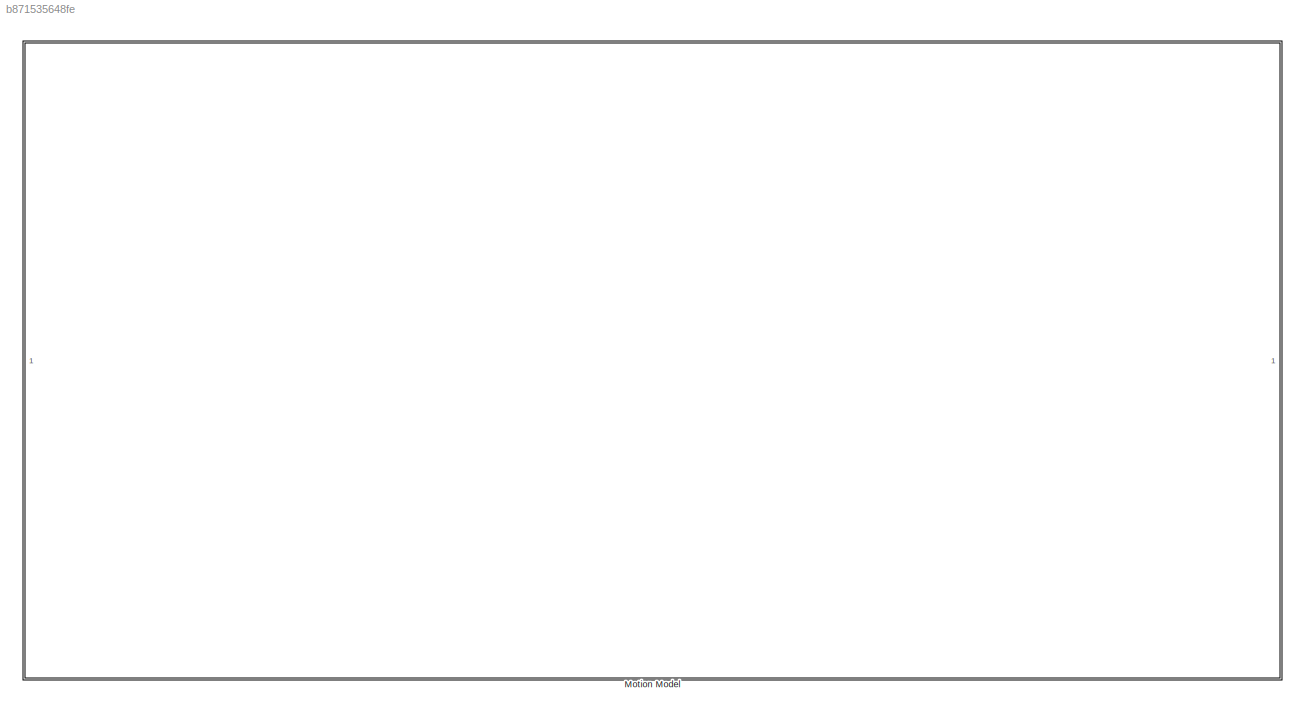
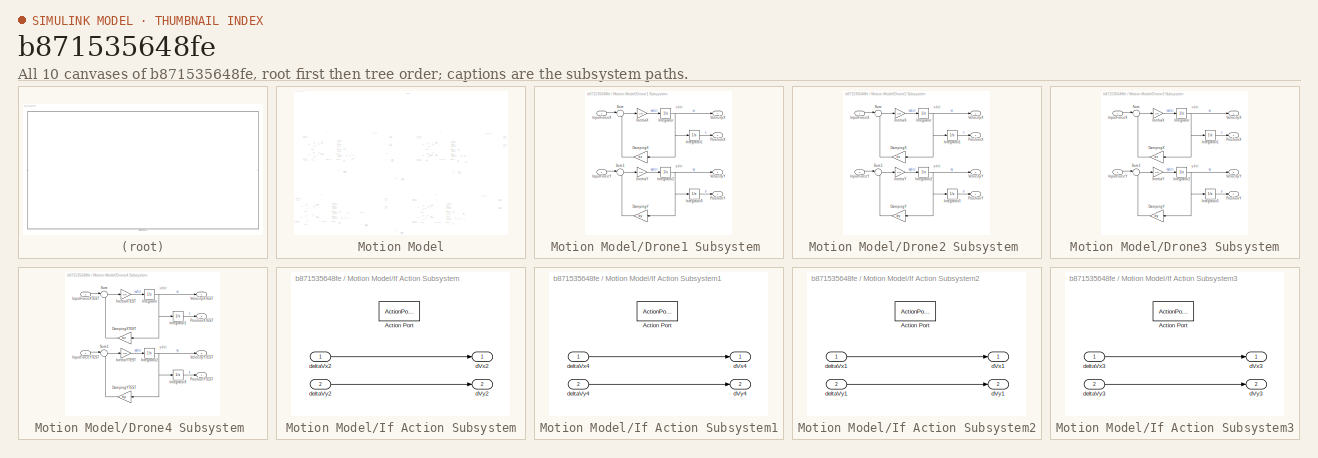
[diagram: thumbnail index - all 10 canvases of the model, root first then tree order]
MODEL slx_b871535648fe
KIND model
CONFIG AbsTol = auto
CONFIG EnableMultiTasking = off
CONFIG FixedStep = auto
CONFIG MaxStep = auto
CONFIG MinStep = auto
CONFIG RelTol = 1e-3
CONFIG SampleTimeConstraint = Unconstrained
CONFIG Solver = VariableStepAuto
CONFIG SolverName = VariableStepAuto
CONFIG StartTime = tStart 
CONFIG StopTime = tFinal
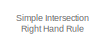
[diagram: Motion Model - part 1/11, top center region]
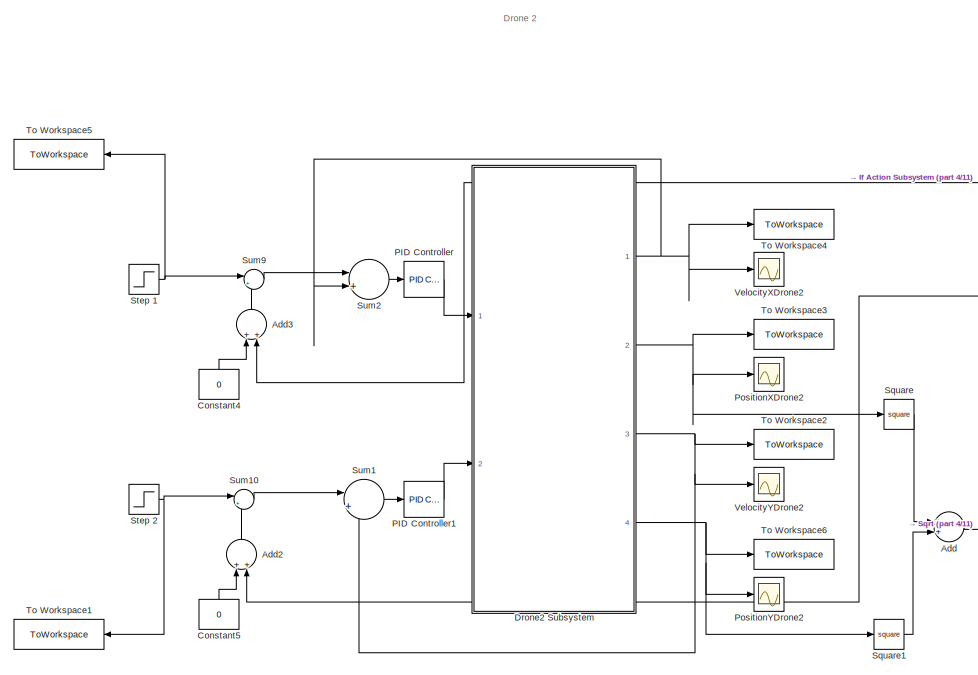
[diagram: Motion Model - part 2/11, middle left region]
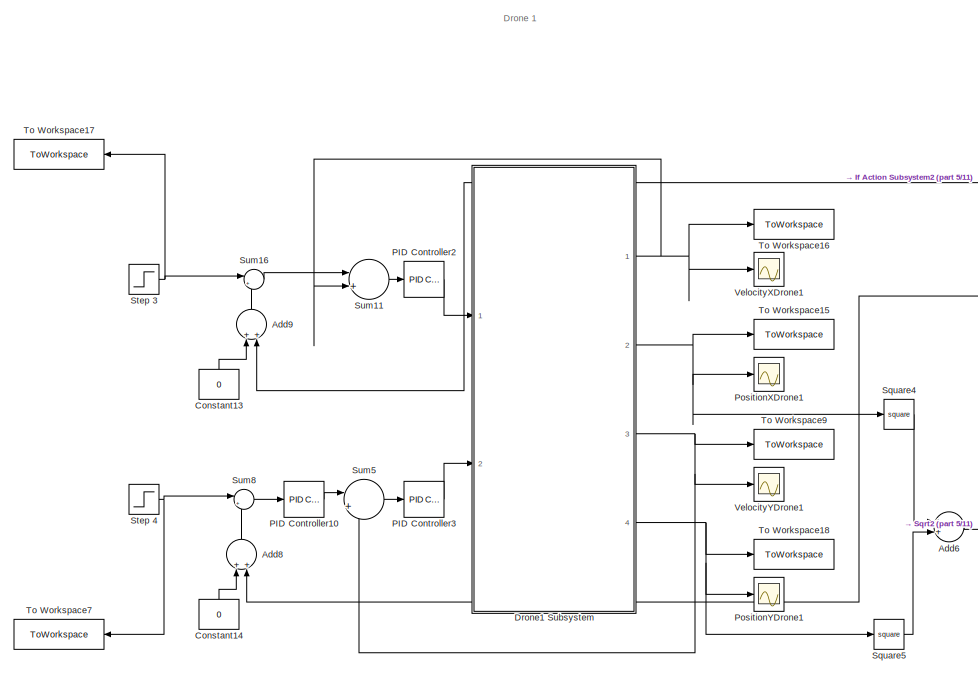
[diagram: Motion Model - part 3/11, middle right region]
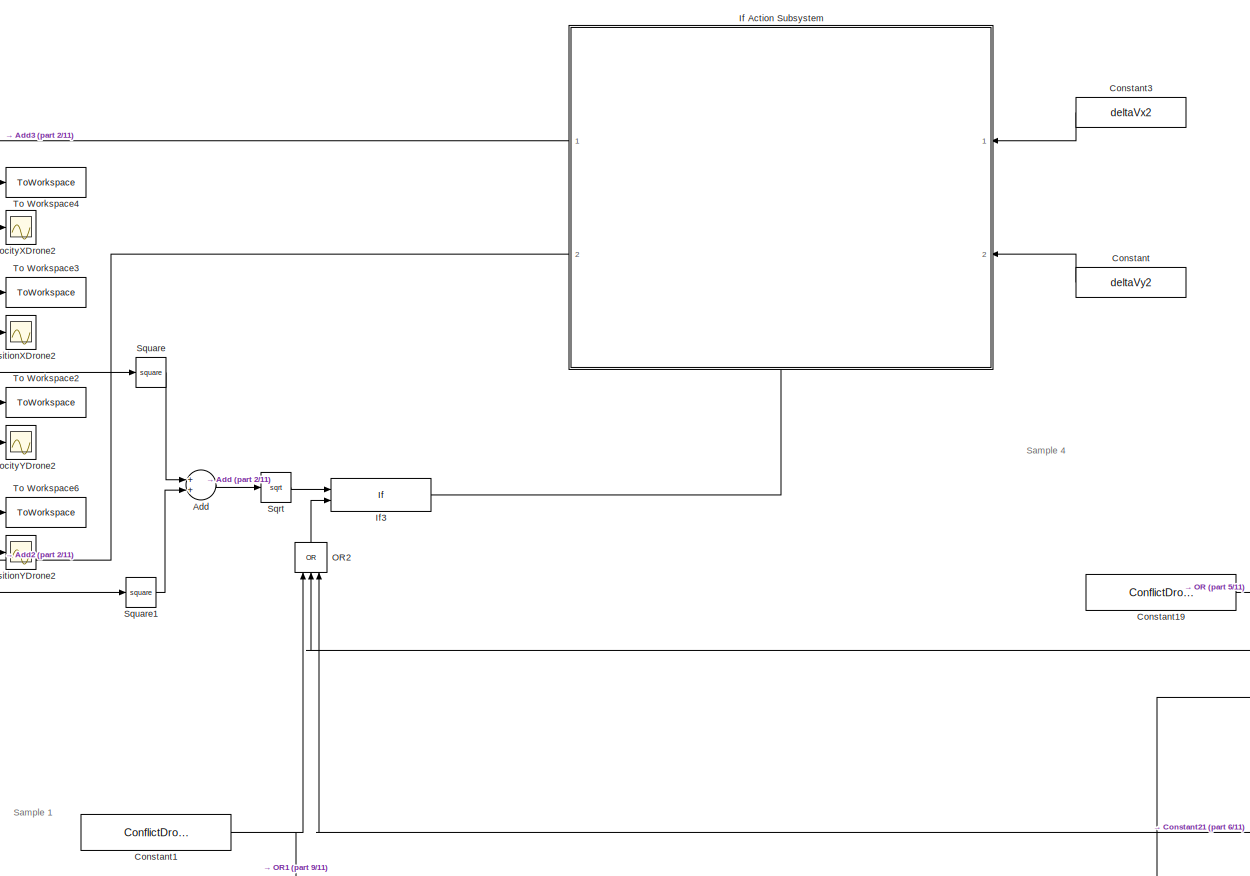
[diagram: Motion Model - part 4/11, central region]
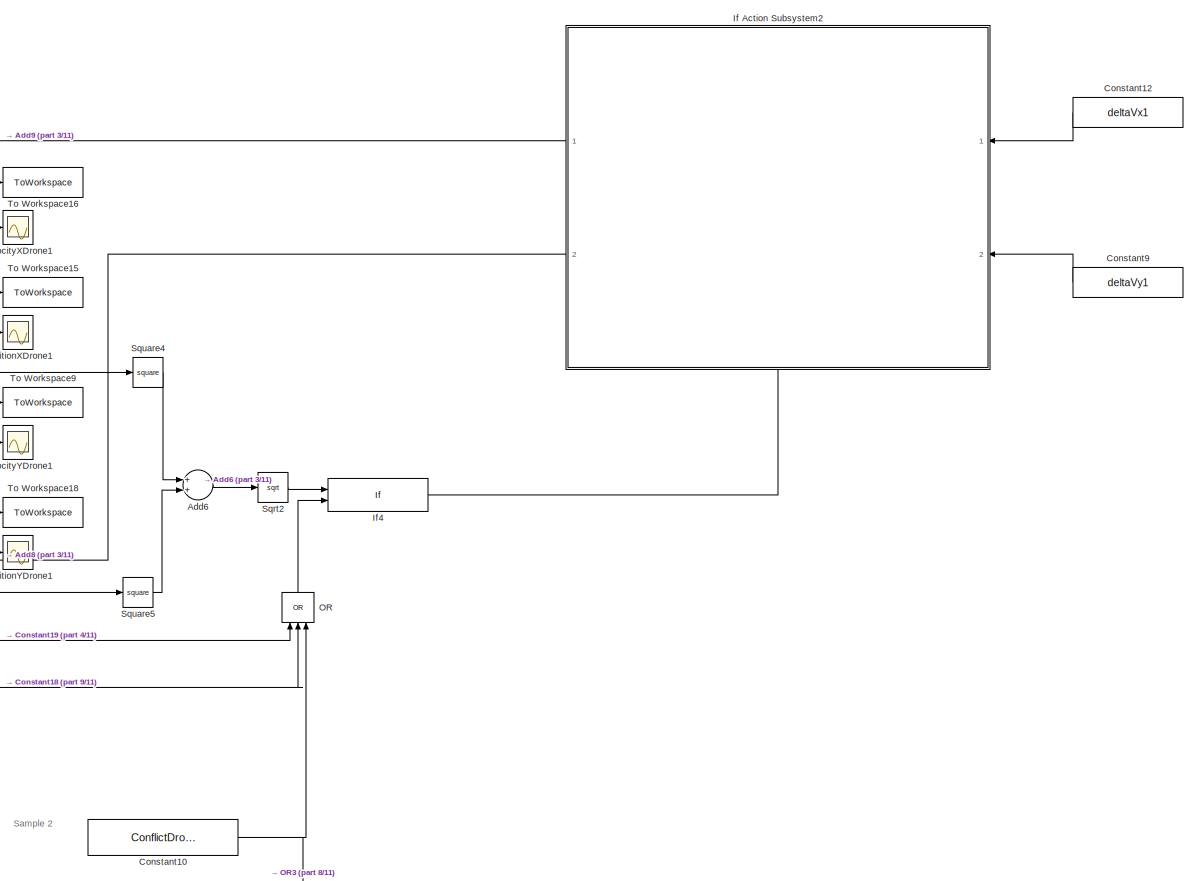
[diagram: Motion Model - part 5/11, middle right region]
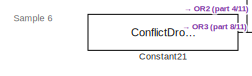
[diagram: Motion Model - part 6/11, central region]
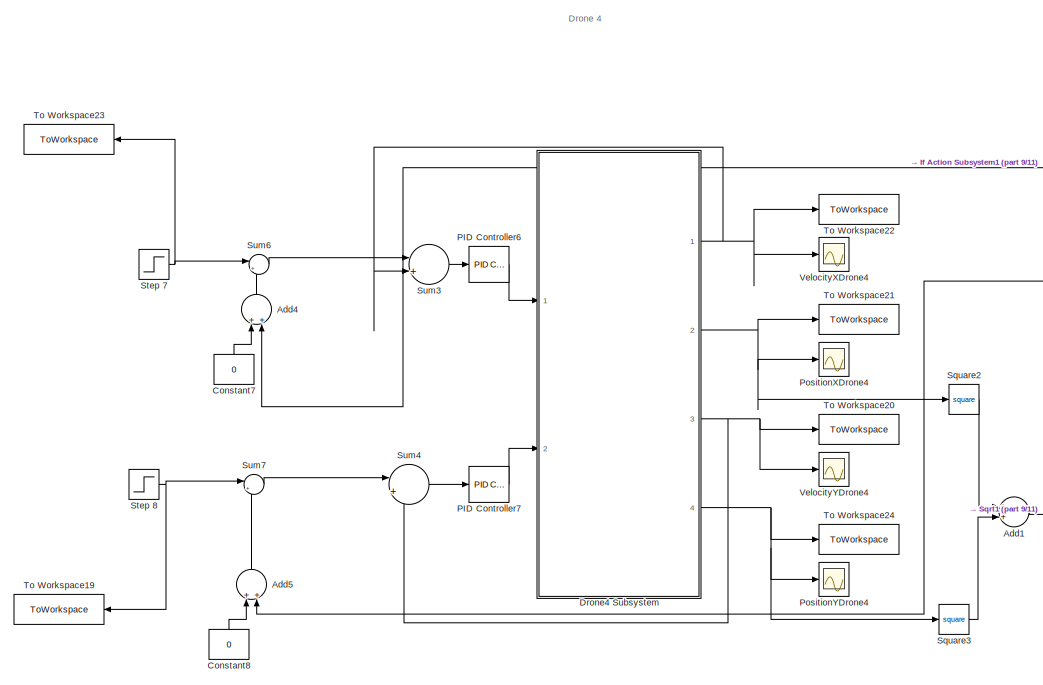
[diagram: Motion Model - part 7/11, bottom left region]
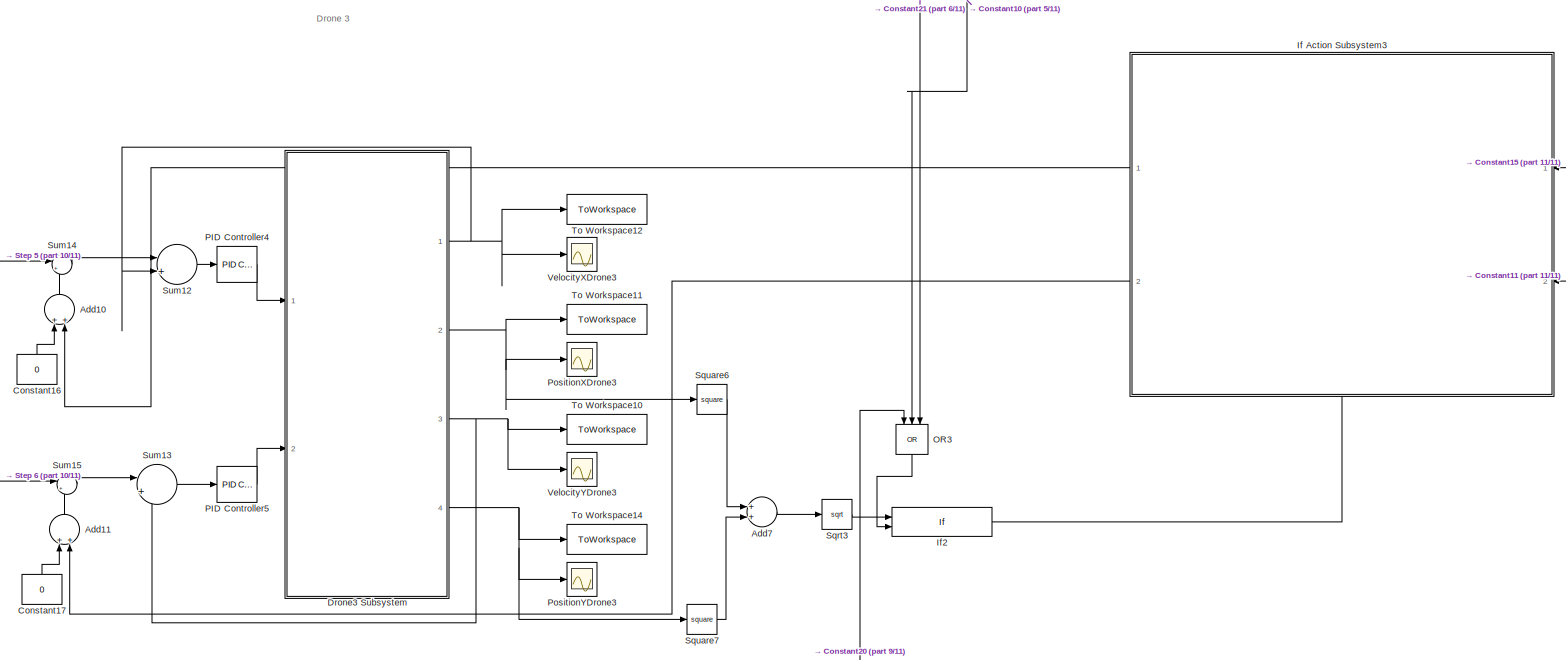
[diagram: Motion Model - part 8/11, bottom right region]
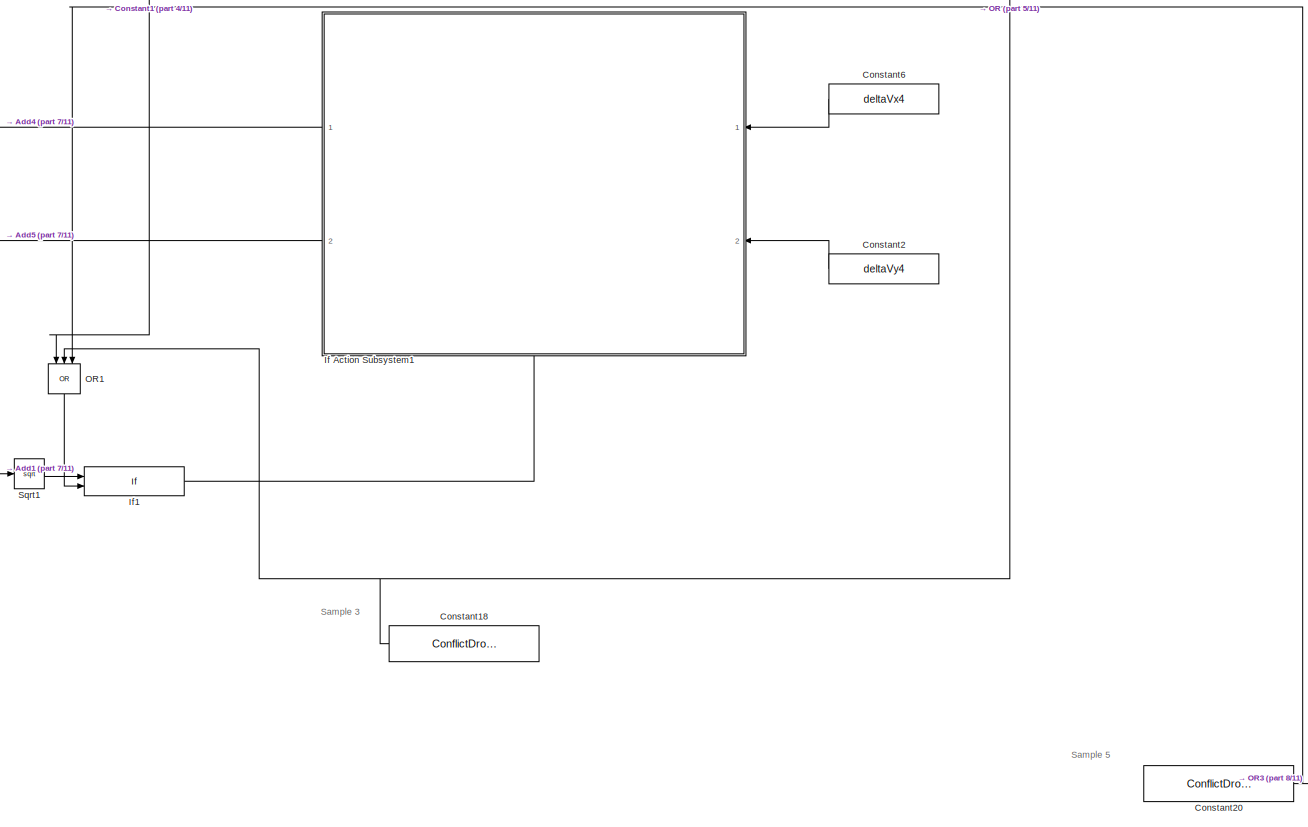
[diagram: Motion Model - part 9/11, bottom center region]
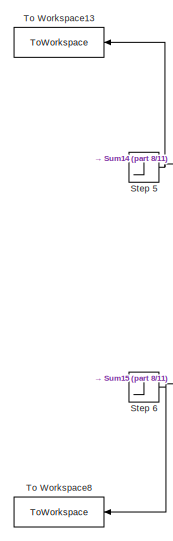
[diagram: Motion Model - part 10/11, bottom center region]
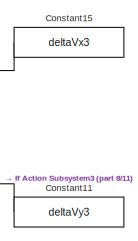
[diagram: Motion Model - part 11/11, bottom right region]
BLOCK [SubSystem] Motion Model
  Ports = []
  RequestExecContextInheritance = off
BLOCK [Sum] Motion Model/Add
  InputSameDT = off
  OutDataTypeStr = Inherit: Inherit via internal rule
  Ports = [2, 1]
  SaturateOnIntegerOverflow = off
BLOCK [Sum] Motion Model/Add1
  Commented = on
  InputSameDT = off
  OutDataTypeStr = Inherit: Inherit via internal rule
  Ports = [2, 1]
  SaturateOnIntegerOverflow = off
BLOCK [Sum] Motion Model/Add10
  InputSameDT = off
  OutDataTypeStr = Inherit: Inherit via internal rule
  Ports = [2, 1]
  SaturateOnIntegerOverflow = off
BLOCK [Sum] Motion Model/Add11
  InputSameDT = off
  OutDataTypeStr = Inherit: Inherit via internal rule
  Ports = [2, 1]
  SaturateOnIntegerOverflow = off
BLOCK [Sum] Motion Model/Add2
  InputSameDT = off
  OutDataTypeStr = Inherit: Inherit via internal rule
  Ports = [2, 1]
  SaturateOnIntegerOverflow = off
BLOCK [Sum] Motion Model/Add3
  InputSameDT = off
  OutDataTypeStr = Inherit: Inherit via internal rule
  Ports = [2, 1]
  SaturateOnIntegerOverflow = off
BLOCK [Sum] Motion Model/Add4
  Commented = on
  InputSameDT = off
  OutDataTypeStr = Inherit: Inherit via internal rule
  Ports = [2, 1]
  SaturateOnIntegerOverflow = off
BLOCK [Sum] Motion Model/Add5
  Commented = on
  InputSameDT = off
  OutDataTypeStr = Inherit: Inherit via internal rule
  Ports = [2, 1]
  SaturateOnIntegerOverflow = off
BLOCK [Sum] Motion Model/Add6
  Commented = on
  InputSameDT = off
  OutDataTypeStr = Inherit: Inherit via internal rule
  Ports = [2, 1]
  SaturateOnIntegerOverflow = off
BLOCK [Sum] Motion Model/Add7
  InputSameDT = off
  OutDataTypeStr = Inherit: Inherit via internal rule
  Ports = [2, 1]
  SaturateOnIntegerOverflow = off
BLOCK [Sum] Motion Model/Add8
  Commented = on
  InputSameDT = off
  OutDataTypeStr = Inherit: Inherit via internal rule
  Ports = [2, 1]
  SaturateOnIntegerOverflow = off
BLOCK [Sum] Motion Model/Add9
  Commented = on
  InputSameDT = off
  OutDataTypeStr = Inherit: Inherit via internal rule
  Ports = [2, 1]
  SaturateOnIntegerOverflow = off
BLOCK [Constant] Motion Model/Constant
  Value = deltaVy2
BLOCK [Constant] Motion Model/Constant1
  Commented = on
  Value = ConflictDrone2andDrone4
BLOCK [Constant] Motion Model/Constant10
  Commented = on
  Value = ConflictDrone1andDrone3
BLOCK [Constant] Motion Model/Constant11
  Value = deltaVy3
BLOCK [Constant] Motion Model/Constant12
  Commented = on
  Value = deltaVx1
BLOCK [Constant] Motion Model/Constant13
  Commented = on
  Value = 0
BLOCK [Constant] Motion Model/Constant14
  Commented = on
  Value = 0
BLOCK [Constant] Motion Model/Constant15
  Value = deltaVx3
BLOCK [Constant] Motion Model/Constant16
  Value = 0
BLOCK [Constant] Motion Model/Constant17
  Value = 0
BLOCK [Constant] Motion Model/Constant18
  Commented = on
  Value = ConflictDrone1andDrone4
BLOCK [Constant] Motion Model/Constant19
  Commented = on
  Value = ConflictDrone1andDrone2
BLOCK [Constant] Motion Model/Constant2
  Commented = on
  Value = deltaVy4
BLOCK [Constant] Motion Model/Constant20
  Commented = on
  Value = ConflictDrone3andDrone4
BLOCK [Constant] Motion Model/Constant21
  Value = ConflictDrone2andDrone3
BLOCK [Constant] Motion Model/Constant3
  Value = deltaVx2
BLOCK [Constant] Motion Model/Constant4
  Value = 0
BLOCK [Constant] Motion Model/Constant5
  Value = 0
BLOCK [Constant] Motion Model/Constant6
  Commented = on
  Value = deltaVx4
BLOCK [Constant] Motion Model/Constant7
  Commented = on
  Value = 0
BLOCK [Constant] Motion Model/Constant8
  Commented = on
  Value = 0
BLOCK [Constant] Motion Model/Constant9
  Commented = on
  Value = deltaVy1
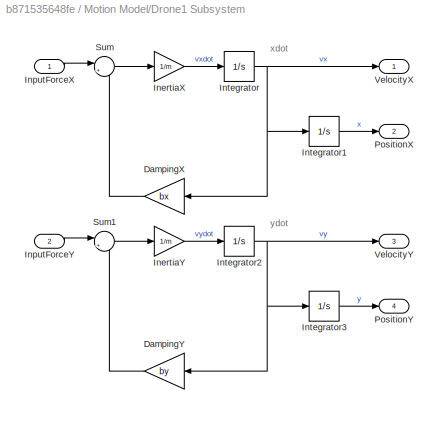
BLOCK [SubSystem] Motion Model/Drone1 Subsystem 
  Commented = on
  Ports = [2, 4]
  RequestExecContextInheritance = off
BLOCK [Gain] Motion Model/Drone1 Subsystem /DampingX 
  Gain = bx
  OutDataTypeStr = Inherit: Inherit via internal rule
  ParamDataTypeStr = Inherit: Inherit via internal rule
  SaturateOnIntegerOverflow = off
BLOCK [Gain] Motion Model/Drone1 Subsystem /DampingY
  Gain = by
  OutDataTypeStr = Inherit: Inherit via internal rule
  ParamDataTypeStr = Inherit: Inherit via internal rule
  SaturateOnIntegerOverflow = off
BLOCK [Gain] Motion Model/Drone1 Subsystem /InertiaX
  Gain = 1/m
  OutDataTypeStr = Inherit: Inherit via internal rule
  ParamDataTypeStr = Inherit: Inherit via internal rule
  SaturateOnIntegerOverflow = off
BLOCK [Gain] Motion Model/Drone1 Subsystem /InertiaY
  Gain = 1/m
  OutDataTypeStr = Inherit: Inherit via internal rule
  ParamDataTypeStr = Inherit: Inherit via internal rule
  SaturateOnIntegerOverflow = off
BLOCK [Inport] Motion Model/Drone1 Subsystem /InputForceX
  IconDisplay = Port number
BLOCK [Inport] Motion Model/Drone1 Subsystem /InputForceY
  IconDisplay = Port number
  Port = 2
BLOCK [Integrator] Motion Model/Drone1 Subsystem /Integrator
  InitialCondition = vx10
  Ports = [1, 1]
BLOCK [Integrator] Motion Model/Drone1 Subsystem /Integrator1
  InitialCondition = x10
  Ports = [1, 1]
BLOCK [Integrator] Motion Model/Drone1 Subsystem /Integrator2
  InitialCondition = vy10
  Ports = [1, 1]
BLOCK [Integrator] Motion Model/Drone1 Subsystem /Integrator3
  InitialCondition = y10
  Ports = [1, 1]
BLOCK [Outport] Motion Model/Drone1 Subsystem /PositionX
  IconDisplay = Port number
  Port = 2
BLOCK [Outport] Motion Model/Drone1 Subsystem /PositionY
  IconDisplay = Port number
  Port = 4
BLOCK [Sum] Motion Model/Drone1 Subsystem /Sum
  IconShape = round
  InputSameDT = off
  Inputs = |+-
  OutDataTypeStr = Inherit: Inherit via internal rule
  Ports = [2, 1]
  SaturateOnIntegerOverflow = off
BLOCK [Sum] Motion Model/Drone1 Subsystem /Sum1
  IconShape = round
  InputSameDT = off
  Inputs = |+-
  OutDataTypeStr = Inherit: Inherit via internal rule
  Ports = [2, 1]
  SaturateOnIntegerOverflow = off
BLOCK [Outport] Motion Model/Drone1 Subsystem /VelocityX
  IconDisplay = Port number
BLOCK [Outport] Motion Model/Drone1 Subsystem /VelocityY
  IconDisplay = Port number
  Port = 3
BLOCK [SubSystem] Motion Model/Drone2 Subsystem 
  Ports = [2, 4]
  RequestExecContextInheritance = off
BLOCK [Gain] Motion Model/Drone2 Subsystem /DampingX 
  Gain = bx
  OutDataTypeStr = Inherit: Inherit via internal rule
  ParamDataTypeStr = Inherit: Inherit via internal rule
  SaturateOnIntegerOverflow = off
BLOCK [Gain] Motion Model/Drone2 Subsystem /DampingY
  Gain = by
  OutDataTypeStr = Inherit: Inherit via internal rule
  ParamDataTypeStr = Inherit: Inherit via internal rule
  SaturateOnIntegerOverflow = off
BLOCK [Gain] Motion Model/Drone2 Subsystem /InertiaX
  Gain = 1/m
  OutDataTypeStr = Inherit: Inherit via internal rule
  ParamDataTypeStr = Inherit: Inherit via internal rule
  SaturateOnIntegerOverflow = off
BLOCK [Gain] Motion Model/Drone2 Subsystem /InertiaY
  Gain = 1/m
  OutDataTypeStr = Inherit: Inherit via internal rule
  ParamDataTypeStr = Inherit: Inherit via internal rule
  SaturateOnIntegerOverflow = off
BLOCK [Inport] Motion Model/Drone2 Subsystem /InputForceX
  IconDisplay = Port number
BLOCK [Inport] Motion Model/Drone2 Subsystem /InputForceY
  IconDisplay = Port number
  Port = 2
BLOCK [Integrator] Motion Model/Drone2 Subsystem /Integrator
  InitialCondition = vx20
  Ports = [1, 1]
BLOCK [Integrator] Motion Model/Drone2 Subsystem /Integrator1
  InitialCondition = x20
  Ports = [1, 1]
BLOCK [Integrator] Motion Model/Drone2 Subsystem /Integrator2
  InitialCondition = vy20
  Ports = [1, 1]
BLOCK [Integrator] Motion Model/Drone2 Subsystem /Integrator3
  InitialCondition = y20
  Ports = [1, 1]
BLOCK [Outport] Motion Model/Drone2 Subsystem /PositionX
  IconDisplay = Port number
  Port = 2
BLOCK [Outport] Motion Model/Drone2 Subsystem /PositionY
  IconDisplay = Port number
  Port = 4
BLOCK [Sum] Motion Model/Drone2 Subsystem /Sum
  IconShape = round
  InputSameDT = off
  Inputs = |+-
  OutDataTypeStr = Inherit: Inherit via internal rule
  Ports = [2, 1]
  SaturateOnIntegerOverflow = off
BLOCK [Sum] Motion Model/Drone2 Subsystem /Sum1
  IconShape = round
  InputSameDT = off
  Inputs = |+-
  OutDataTypeStr = Inherit: Inherit via internal rule
  Ports = [2, 1]
  SaturateOnIntegerOverflow = off
BLOCK [Outport] Motion Model/Drone2 Subsystem /VelocityX
  IconDisplay = Port number
BLOCK [Outport] Motion Model/Drone2 Subsystem /VelocityY
  IconDisplay = Port number
  Port = 3
BLOCK [SubSystem] Motion Model/Drone3 Subsystem
  Ports = [2, 4]
  RequestExecContextInheritance = off
BLOCK [Gain] Motion Model/Drone3 Subsystem/DampingX 
  Gain = bx
  OutDataTypeStr = Inherit: Inherit via internal rule
  ParamDataTypeStr = Inherit: Inherit via internal rule
  SaturateOnIntegerOverflow = off
BLOCK [Gain] Motion Model/Drone3 Subsystem/DampingY
  Gain = by
  OutDataTypeStr = Inherit: Inherit via internal rule
  ParamDataTypeStr = Inherit: Inherit via internal rule
  SaturateOnIntegerOverflow = off
BLOCK [Gain] Motion Model/Drone3 Subsystem/InertiaX
  Gain = 1/m
  OutDataTypeStr = Inherit: Inherit via internal rule
  ParamDataTypeStr = Inherit: Inherit via internal rule
  SaturateOnIntegerOverflow = off
BLOCK [Gain] Motion Model/Drone3 Subsystem/InertiaY
  Gain = 1/m
  OutDataTypeStr = Inherit: Inherit via internal rule
  ParamDataTypeStr = Inherit: Inherit via internal rule
  SaturateOnIntegerOverflow = off
BLOCK [Inport] Motion Model/Drone3 Subsystem/InputForceX
  IconDisplay = Port number
BLOCK [Inport] Motion Model/Drone3 Subsystem/InputForceY
  IconDisplay = Port number
  Port = 2
BLOCK [Integrator] Motion Model/Drone3 Subsystem/Integrator
  InitialCondition = vx30
  Ports = [1, 1]
BLOCK [Integrator] Motion Model/Drone3 Subsystem/Integrator1
  InitialCondition = x30
  Ports = [1, 1]
BLOCK [Integrator] Motion Model/Drone3 Subsystem/Integrator2
  InitialCondition = vy30
  Ports = [1, 1]
BLOCK [Integrator] Motion Model/Drone3 Subsystem/Integrator3
  InitialCondition = y30
  Ports = [1, 1]
BLOCK [Outport] Motion Model/Drone3 Subsystem/PositionX
  IconDisplay = Port number
  Port = 2
BLOCK [Outport] Motion Model/Drone3 Subsystem/PositionY
  IconDisplay = Port number
  Port = 4
BLOCK [Sum] Motion Model/Drone3 Subsystem/Sum
  IconShape = round
  InputSameDT = off
  Inputs = |+-
  OutDataTypeStr = Inherit: Inherit via internal rule
  Ports = [2, 1]
  SaturateOnIntegerOverflow = off
BLOCK [Sum] Motion Model/Drone3 Subsystem/Sum1
  IconShape = round
  InputSameDT = off
  Inputs = |+-
  OutDataTypeStr = Inherit: Inherit via internal rule
  Ports = [2, 1]
  SaturateOnIntegerOverflow = off
BLOCK [Outport] Motion Model/Drone3 Subsystem/VelocityX
  IconDisplay = Port number
BLOCK [Outport] Motion Model/Drone3 Subsystem/VelocityY
  IconDisplay = Port number
  Port = 3
BLOCK [SubSystem] Motion Model/Drone4 Subsystem 
  Commented = on
  Ports = [2, 4]
  RequestExecContextInheritance = off
BLOCK [Gain] Motion Model/Drone4 Subsystem /DampingXTEST 
  Gain = bx
  OutDataTypeStr = Inherit: Inherit via internal rule
  ParamDataTypeStr = Inherit: Inherit via internal rule
  SaturateOnIntegerOverflow = off
BLOCK [Gain] Motion Model/Drone4 Subsystem /DampingYTEST
  Gain = by
  OutDataTypeStr = Inherit: Inherit via internal rule
  ParamDataTypeStr = Inherit: Inherit via internal rule
  SaturateOnIntegerOverflow = off
BLOCK [Gain] Motion Model/Drone4 Subsystem /InertiaXTEST
  Gain = 1/m
  OutDataTypeStr = Inherit: Inherit via internal rule
  ParamDataTypeStr = Inherit: Inherit via internal rule
  SaturateOnIntegerOverflow = off
BLOCK [Gain] Motion Model/Drone4 Subsystem /InertiaYTEST
  Gain = 1/m
  OutDataTypeStr = Inherit: Inherit via internal rule
  ParamDataTypeStr = Inherit: Inherit via internal rule
  SaturateOnIntegerOverflow = off
BLOCK [Inport] Motion Model/Drone4 Subsystem /InputForceXTEST
  IconDisplay = Port number
BLOCK [Inport] Motion Model/Drone4 Subsystem /InputForceYTEST
  IconDisplay = Port number
  Port = 2
BLOCK [Integrator] Motion Model/Drone4 Subsystem /Integrator
  InitialCondition = vx40
  Ports = [1, 1]
BLOCK [Integrator] Motion Model/Drone4 Subsystem /Integrator1
  InitialCondition = x40
  Ports = [1, 1]
BLOCK [Integrator] Motion Model/Drone4 Subsystem /Integrator2
  InitialCondition = vy40
  Ports = [1, 1]
BLOCK [Integrator] Motion Model/Drone4 Subsystem /Integrator3
  InitialCondition = y40
  Ports = [1, 1]
BLOCK [Outport] Motion Model/Drone4 Subsystem /PositionXTEST
  IconDisplay = Port number
  Port = 2
BLOCK [Outport] Motion Model/Drone4 Subsystem /PositionYTEST
  IconDisplay = Port number
  Port = 4
BLOCK [Sum] Motion Model/Drone4 Subsystem /Sum
  IconShape = round
  InputSameDT = off
  Inputs = |+-
  OutDataTypeStr = Inherit: Inherit via internal rule
  Ports = [2, 1]
  SaturateOnIntegerOverflow = off
BLOCK [Sum] Motion Model/Drone4 Subsystem /Sum1
  IconShape = round
  InputSameDT = off
  Inputs = |+-
  OutDataTypeStr = Inherit: Inherit via internal rule
  Ports = [2, 1]
  SaturateOnIntegerOverflow = off
BLOCK [Outport] Motion Model/Drone4 Subsystem /VelocityXTEST
  IconDisplay = Port number
BLOCK [Outport] Motion Model/Drone4 Subsystem /VelocityYTEST
  IconDisplay = Port number
  Port = 3
BLOCK [SubSystem] Motion Model/If Action Subsystem
  Ports = [2, 2, 0, 0, 0, 0, 0, 1]
  RequestExecContextInheritance = off
  TreatAsAtomicUnit = on
BLOCK [ActionPort] Motion Model/If Action Subsystem/Action Port
  ActionType = then
BLOCK [Outport] Motion Model/If Action Subsystem/dVx2
  IconDisplay = Port number
BLOCK [Outport] Motion Model/If Action Subsystem/dVy2
  IconDisplay = Port number
  Port = 2
BLOCK [Inport] Motion Model/If Action Subsystem/deltaVx2
  IconDisplay = Port number
BLOCK [Inport] Motion Model/If Action Subsystem/deltaVy2
  IconDisplay = Port number
  Port = 2
BLOCK [SubSystem] Motion Model/If Action Subsystem1
  Commented = on
  Ports = [2, 2, 0, 0, 0, 0, 0, 1]
  RequestExecContextInheritance = off
  TreatAsAtomicUnit = on
BLOCK [ActionPort] Motion Model/If Action Subsystem1/Action Port
  ActionType = then
BLOCK [Outport] Motion Model/If Action Subsystem1/dVx4
  IconDisplay = Port number
BLOCK [Outport] Motion Model/If Action Subsystem1/dVy4
  IconDisplay = Port number
  Port = 2
BLOCK [Inport] Motion Model/If Action Subsystem1/deltaVx4
  IconDisplay = Port number
BLOCK [Inport] Motion Model/If Action Subsystem1/deltaVy4
  IconDisplay = Port number
  Port = 2
BLOCK [SubSystem] Motion Model/If Action Subsystem2
  Commented = on
  Ports = [2, 2, 0, 0, 0, 0, 0, 1]
  RequestExecContextInheritance = off
  TreatAsAtomicUnit = on
BLOCK [ActionPort] Motion Model/If Action Subsystem2/Action Port
  ActionType = then
BLOCK [Outport] Motion Model/If Action Subsystem2/dVx1
  IconDisplay = Port number
BLOCK [Outport] Motion Model/If Action Subsystem2/dVy1
  IconDisplay = Port number
  Port = 2
BLOCK [Inport] Motion Model/If Action Subsystem2/deltaVx1
  IconDisplay = Port number
BLOCK [Inport] Motion Model/If Action Subsystem2/deltaVy1
  IconDisplay = Port number
  Port = 2
BLOCK [SubSystem] Motion Model/If Action Subsystem3
  Ports = [2, 2, 0, 0, 0, 0, 0, 1]
  RequestExecContextInheritance = off
  TreatAsAtomicUnit = on
BLOCK [ActionPort] Motion Model/If Action Subsystem3/Action Port
  ActionType = then
BLOCK [Outport] Motion Model/If Action Subsystem3/dVx3
  IconDisplay = Port number
BLOCK [Outport] Motion Model/If Action Subsystem3/dVy3
  IconDisplay = Port number
  Port = 2
BLOCK [Inport] Motion Model/If Action Subsystem3/deltaVx3
  IconDisplay = Port number
BLOCK [Inport] Motion Model/If Action Subsystem3/deltaVy3
  IconDisplay = Port number
  Port = 2
BLOCK [If] Motion Model/If1
  Commented = on
  IfExpression = (u1 <= R)&(u2 == 1)
  NumInputs = 2
  Ports = [2, 1]
  ShowElse = off
BLOCK [If] Motion Model/If2
  IfExpression = (u1 <= R)&(u2 == 1)
  NumInputs = 2
  Ports = [2, 1]
  ShowElse = off
BLOCK [If] Motion Model/If3
  IfExpression = (u1 <= R)&(u2 == 1)
  NumInputs = 2
  Ports = [2, 1]
  ShowElse = off
BLOCK [If] Motion Model/If4
  Commented = on
  IfExpression = (u1 <= R)&(u2 == 1)
  NumInputs = 2
  Ports = [2, 1]
  ShowElse = off
BLOCK [Logic] Motion Model/OR
  AllPortsSameDT = off
  Commented = on
  IconShape = distinctive
  Inputs = 3
  Operator = OR
  OutDataTypeStr = 'double'
  Ports = [3, 1]
BLOCK [Logic] Motion Model/OR1
  AllPortsSameDT = off
  Commented = on
  IconShape = distinctive
  Inputs = 3
  Operator = OR
  OutDataTypeStr = 'double'
  Ports = [3, 1]
BLOCK [Logic] Motion Model/OR2
  AllPortsSameDT = off
  IconShape = distinctive
  Inputs = 3
  Operator = OR
  OutDataTypeStr = 'double'
  Ports = [3, 1]
BLOCK [Logic] Motion Model/OR3
  AllPortsSameDT = off
  IconShape = distinctive
  Inputs = 3
  Operator = OR
  OutDataTypeStr = 'double'
  Ports = [3, 1]
BLOCK [Reference] Motion Model/PID Controller  REF=simulink/Continuous/PID Controller
  Ports = [1, 1]
  SourceBlock = simulink/Continuous/PID Controller
  SourceProductBaseCode = SL
  SourceProductName = Simulink
  SourceType = PID 1dof
BLOCK [Reference] Motion Model/PID Controller1  REF=simulink/Continuous/PID Controller
  Ports = [1, 1]
  SourceBlock = simulink/Continuous/PID Controller
  SourceProductBaseCode = SL
  SourceProductName = Simulink
  SourceType = PID 1dof
BLOCK [Reference] Motion Model/PID Controller10  REF=simulink/Continuous/PID Controller
  Commented = on
  Ports = [1, 1]
  SourceBlock = simulink/Continuous/PID Controller
  SourceProductBaseCode = SL
  SourceProductName = Simulink
  SourceType = PID 1dof
BLOCK [Reference] Motion Model/PID Controller2  REF=simulink/Continuous/PID Controller
  Commented = on
  Ports = [1, 1]
  SourceBlock = simulink/Continuous/PID Controller
  SourceProductBaseCode = SL
  SourceProductName = Simulink
  SourceType = PID 1dof
BLOCK [Reference] Motion Model/PID Controller3  REF=simulink/Continuous/PID Controller
  Commented = on
  Ports = [1, 1]
  SourceBlock = simulink/Continuous/PID Controller
  SourceProductBaseCode = SL
  SourceProductName = Simulink
  SourceType = PID 1dof
BLOCK [Reference] Motion Model/PID Controller4  REF=simulink/Continuous/PID Controller
  Ports = [1, 1]
  SourceBlock = simulink/Continuous/PID Controller
  SourceProductBaseCode = SL
  SourceProductName = Simulink
  SourceType = PID 1dof
BLOCK [Reference] Motion Model/PID Controller5  REF=simulink/Continuous/PID Controller
  Ports = [1, 1]
  SourceBlock = simulink/Continuous/PID Controller
  SourceProductBaseCode = SL
  SourceProductName = Simulink
  SourceType = PID 1dof
BLOCK [Reference] Motion Model/PID Controller6  REF=simulink/Continuous/PID Controller
  Commented = on
  Ports = [1, 1]
  SourceBlock = simulink/Continuous/PID Controller
  SourceProductBaseCode = SL
  SourceProductName = Simulink
  SourceType = PID 1dof
BLOCK [Reference] Motion Model/PID Controller7  REF=simulink/Continuous/PID Controller
  Commented = on
  Ports = [1, 1]
  SourceBlock = simulink/Continuous/PID Controller
  SourceProductBaseCode = SL
  SourceProductName = Simulink
  SourceType = PID 1dof
BLOCK [Scope] Motion Model/PositionXDrone1
  Commented = on
  Floating = off
  NumInputPorts = 1
  Ports = [1]
  ScopeSpecificationString = Simulink.scopes.TimeScopeBlockCfg('CurrentConfiguration', extmgr.ConfigurationSet(extmgr.Configuration('Core','General UI',true),extmgr.Configuration('Core','Source UI',true),extmgr.Configuration('Sources','WiredSimulink',true,'DataLoggingVariableName','ScopeData1'),extmgr.Configuration('Visuals','Time Domain',true,'SerializedDisplays',{struct('MinYLimReal','-13.93778','MaxYLimReal','12.65975','YL...<+1455ch>
BLOCK [Scope] Motion Model/PositionXDrone2
  Floating = off
  NumInputPorts = 1
  Ports = [1]
  ScopeSpecificationString = Simulink.scopes.TimeScopeBlockCfg('CurrentConfiguration', extmgr.ConfigurationSet(extmgr.Configuration('Core','General UI',true),extmgr.Configuration('Core','Source UI',true),extmgr.Configuration('Sources','WiredSimulink',true,'DataLoggingVariableName','ScopeData2'),extmgr.Configuration('Visuals','Time Domain',true,'SerializedDisplays',{struct('MinYLimReal','-13.93778','MaxYLimReal','12.65975','YL...<+1455ch>
BLOCK [Scope] Motion Model/PositionXDrone3
  Floating = off
  NumInputPorts = 1
  Ports = [1]
  ScopeSpecificationString = Simulink.scopes.TimeScopeBlockCfg('CurrentConfiguration', extmgr.ConfigurationSet(extmgr.Configuration('Core','General UI',true),extmgr.Configuration('Core','Source UI',true),extmgr.Configuration('Sources','WiredSimulink',true,'DataLoggingVariableName','ScopeData2'),extmgr.Configuration('Visuals','Time Domain',true,'SerializedDisplays',{struct('MinYLimReal','-75.81743','MaxYLimReal','8.42416','YLa...<+1453ch>
BLOCK [Scope] Motion Model/PositionXDrone4
  Commented = on
  Floating = off
  NumInputPorts = 1
  Ports = [1]
  ScopeSpecificationString = Simulink.scopes.TimeScopeBlockCfg('CurrentConfiguration', extmgr.ConfigurationSet(extmgr.Configuration('Core','General UI',true),extmgr.Configuration('Core','Source UI',true),extmgr.Configuration('Sources','WiredSimulink',true,'DataLoggingVariableName','ScopeData4'),extmgr.Configuration('Visuals','Time Domain',true,'SerializedDisplays',{struct('MinYLimReal','-75.81743','MaxYLimReal','8.42416','YLa...<+1453ch>
BLOCK [Scope] Motion Model/PositionYDrone1
  Commented = on
  Floating = off
  NumInputPorts = 1
  Ports = [1]
  ScopeSpecificationString = Simulink.scopes.TimeScopeBlockCfg('CurrentConfiguration', extmgr.ConfigurationSet(extmgr.Configuration('Core','General UI',true),extmgr.Configuration('Core','Source UI',true),extmgr.Configuration('Sources','WiredSimulink',true,'DataLoggingVariableName','ScopeData3'),extmgr.Configuration('Visuals','Time Domain',true,'SerializedDisplays',{struct('MinYLimReal','-12488.44039','MaxYLimReal','112495.937...<+1759ch>
BLOCK [Scope] Motion Model/PositionYDrone2
  Floating = off
  NumInputPorts = 1
  Ports = [1]
  ScopeSpecificationString = Simulink.scopes.TimeScopeBlockCfg('CurrentConfiguration', extmgr.ConfigurationSet(extmgr.Configuration('Core','General UI',true),extmgr.Configuration('Core','Source UI',true),extmgr.Configuration('Sources','WiredSimulink',true,'DataLoggingVariableName','ScopeData10'),extmgr.Configuration('Visuals','Time Domain',true,'SerializedDisplays',{struct('MinYLimReal','-12488.44039','MaxYLimReal','112495.93...<+1760ch>
BLOCK [Scope] Motion Model/PositionYDrone3
  Floating = off
  NumInputPorts = 1
  Ports = [1]
  ScopeSpecificationString = Simulink.scopes.TimeScopeBlockCfg('CurrentConfiguration', extmgr.ConfigurationSet(extmgr.Configuration('Core','General UI',true),extmgr.Configuration('Core','Source UI',true),extmgr.Configuration('Sources','WiredSimulink',true,'DataLoggingVariableName','ScopeData4'),extmgr.Configuration('Visuals','Time Domain',true,'SerializedDisplays',{struct('MinYLimReal','-12488.44039','MaxYLimReal','112495.937...<+1759ch>
BLOCK [Scope] Motion Model/PositionYDrone4
  Commented = on
  Floating = off
  NumInputPorts = 1
  Ports = [1]
  ScopeSpecificationString = Simulink.scopes.TimeScopeBlockCfg('CurrentConfiguration', extmgr.ConfigurationSet(extmgr.Configuration('Core','General UI',true),extmgr.Configuration('Core','Source UI',true),extmgr.Configuration('Sources','WiredSimulink',true,'DataLoggingVariableName','ScopeData12'),extmgr.Configuration('Visuals','Time Domain',true,'SerializedDisplays',{struct('MinYLimReal','-12488.44039','MaxYLimReal','112495.93...<+1760ch>
BLOCK [Sqrt] Motion Model/Sqrt
BLOCK [Sqrt] Motion Model/Sqrt1
  Commented = on
BLOCK [Sqrt] Motion Model/Sqrt2
  Commented = on
BLOCK [Sqrt] Motion Model/Sqrt3
BLOCK [Math] Motion Model/Square
  Operator = square
  Ports = [1, 1]
BLOCK [Math] Motion Model/Square1
  Operator = square
  Ports = [1, 1]
BLOCK [Math] Motion Model/Square2
  Commented = on
  Operator = square
  Ports = [1, 1]
BLOCK [Math] Motion Model/Square3
  Commented = on
  Operator = square
  Ports = [1, 1]
BLOCK [Math] Motion Model/Square4
  Commented = on
  Operator = square
  Ports = [1, 1]
BLOCK [Math] Motion Model/Square5
  Commented = on
  Operator = square
  Ports = [1, 1]
BLOCK [Math] Motion Model/Square6
  Operator = square
  Ports = [1, 1]
BLOCK [Math] Motion Model/Square7
  Operator = square
  Ports = [1, 1]
BLOCK [Step] Motion Model/Step 1
  After = VelocityStarX2
  SampleTime = 0
  Time = 0
BLOCK [Step] Motion Model/Step 2
  After = VelocityStarY2
  SampleTime = 0
  Time = 0
BLOCK [Step] Motion Model/Step 3
  After = VelocityStarX1
  Commented = on
  SampleTime = 0
  Time = 0
BLOCK [Step] Motion Model/Step 4
  After = VelocityStarY1
  Commented = on
  SampleTime = 0
  Time = 0
BLOCK [Step] Motion Model/Step 5
  After = VelocityStarX3
  SampleTime = 0
  Time = 0
BLOCK [Step] Motion Model/Step 6
  After = VelocityStarY3
  SampleTime = 0
  Time = 0
BLOCK [Step] Motion Model/Step 7
  After = VelocityStarX4
  Commented = on
  SampleTime = 0
  Time = 0
BLOCK [Step] Motion Model/Step 8
  After = VelocityStarY4
  Commented = on
  SampleTime = 0
  Time = 0
BLOCK [Sum] Motion Model/Sum1
  IconShape = round
  InputSameDT = off
  Inputs = |+-
  OutDataTypeStr = Inherit: Inherit via internal rule
  Ports = [2, 1]
  SaturateOnIntegerOverflow = off
BLOCK [Sum] Motion Model/Sum10
  IconShape = round
  InputSameDT = off
  Inputs = |+-
  OutDataTypeStr = Inherit: Inherit via internal rule
  Ports = [2, 1]
  SaturateOnIntegerOverflow = off
BLOCK [Sum] Motion Model/Sum11
  Commented = on
  IconShape = round
  InputSameDT = off
  Inputs = |+-
  OutDataTypeStr = Inherit: Inherit via internal rule
  Ports = [2, 1]
  SaturateOnIntegerOverflow = off
BLOCK [Sum] Motion Model/Sum12
  IconShape = round
  InputSameDT = off
  Inputs = |+-
  OutDataTypeStr = Inherit: Inherit via internal rule
  Ports = [2, 1]
  SaturateOnIntegerOverflow = off
BLOCK [Sum] Motion Model/Sum13
  IconShape = round
  InputSameDT = off
  Inputs = |+-
  OutDataTypeStr = Inherit: Inherit via internal rule
  Ports = [2, 1]
  SaturateOnIntegerOverflow = off
BLOCK [Sum] Motion Model/Sum14
  IconShape = round
  InputSameDT = off
  Inputs = |+-
  OutDataTypeStr = Inherit: Inherit via internal rule
  Ports = [2, 1]
  SaturateOnIntegerOverflow = off
BLOCK [Sum] Motion Model/Sum15
  IconShape = round
  InputSameDT = off
  Inputs = |+-
  OutDataTypeStr = Inherit: Inherit via internal rule
  Ports = [2, 1]
  SaturateOnIntegerOverflow = off
BLOCK [Sum] Motion Model/Sum16
  Commented = on
  IconShape = round
  InputSameDT = off
  Inputs = |+-
  OutDataTypeStr = Inherit: Inherit via internal rule
  Ports = [2, 1]
  SaturateOnIntegerOverflow = off
BLOCK [Sum] Motion Model/Sum2
  IconShape = round
  InputSameDT = off
  Inputs = |+-
  OutDataTypeStr = Inherit: Inherit via internal rule
  Ports = [2, 1]
  SaturateOnIntegerOverflow = off
BLOCK [Sum] Motion Model/Sum3
  Commented = on
  IconShape = round
  InputSameDT = off
  Inputs = |+-
  OutDataTypeStr = Inherit: Inherit via internal rule
  Ports = [2, 1]
  SaturateOnIntegerOverflow = off
BLOCK [Sum] Motion Model/Sum4
  Commented = on
  IconShape = round
  InputSameDT = off
  Inputs = |+-
  OutDataTypeStr = Inherit: Inherit via internal rule
  Ports = [2, 1]
  SaturateOnIntegerOverflow = off
BLOCK [Sum] Motion Model/Sum5
  Commented = on
  IconShape = round
  InputSameDT = off
  Inputs = |+-
  OutDataTypeStr = Inherit: Inherit via internal rule
  Ports = [2, 1]
  SaturateOnIntegerOverflow = off
BLOCK [Sum] Motion Model/Sum6
  Commented = on
  IconShape = round
  InputSameDT = off
  Inputs = |+-
  OutDataTypeStr = Inherit: Inherit via internal rule
  Ports = [2, 1]
  SaturateOnIntegerOverflow = off
BLOCK [Sum] Motion Model/Sum7
  Commented = on
  IconShape = round
  InputSameDT = off
  Inputs = |+-
  OutDataTypeStr = Inherit: Inherit via internal rule
  Ports = [2, 1]
  SaturateOnIntegerOverflow = off
BLOCK [Sum] Motion Model/Sum8
  Commented = on
  IconShape = round
  InputSameDT = off
  Inputs = |+-
  OutDataTypeStr = Inherit: Inherit via internal rule
  Ports = [2, 1]
  SaturateOnIntegerOverflow = off
BLOCK [Sum] Motion Model/Sum9
  IconShape = round
  InputSameDT = off
  Inputs = |+-
  OutDataTypeStr = Inherit: Inherit via internal rule
  Ports = [2, 1]
  SaturateOnIntegerOverflow = off
BLOCK [ToWorkspace] Motion Model/To Workspace1
  FixptAsFi = on
  MaxDataPoints = inf
  Ports = [1]
  SampleTime = -1
  Save2DSignal = 3-D array (concatenate along third dimension)
  VariableName = VelocityStarY2
BLOCK [ToWorkspace] Motion Model/To Workspace10
  FixptAsFi = on
  MaxDataPoints = inf
  Ports = [1]
  SampleTime = -1
  Save2DSignal = 3-D array (concatenate along third dimension)
  VariableName = VelocityYDrone3
BLOCK [ToWorkspace] Motion Model/To Workspace11
  FixptAsFi = on
  MaxDataPoints = inf
  Ports = [1]
  SampleTime = -1
  Save2DSignal = 3-D array (concatenate along third dimension)
  VariableName = PositionXDrone3
BLOCK [ToWorkspace] Motion Model/To Workspace12
  FixptAsFi = on
  MaxDataPoints = inf
  Ports = [1]
  SampleTime = -1
  Save2DSignal = 3-D array (concatenate along third dimension)
  VariableName = VelocityXDrone3
BLOCK [ToWorkspace] Motion Model/To Workspace13
  FixptAsFi = on
  MaxDataPoints = inf
  Ports = [1]
  SampleTime = -1
  Save2DSignal = 3-D array (concatenate along third dimension)
  VariableName = VelocityStarX3
BLOCK [ToWorkspace] Motion Model/To Workspace14
  FixptAsFi = on
  MaxDataPoints = inf
  Ports = [1]
  SampleTime = -1
  Save2DSignal = 3-D array (concatenate along third dimension)
  VariableName = PositionYDrone3
BLOCK [ToWorkspace] Motion Model/To Workspace15
  Commented = on
  FixptAsFi = on
  MaxDataPoints = inf
  Ports = [1]
  SampleTime = -1
  Save2DSignal = 3-D array (concatenate along third dimension)
  VariableName = PositionXDrone1
BLOCK [ToWorkspace] Motion Model/To Workspace16
  Commented = on
  FixptAsFi = on
  MaxDataPoints = inf
  Ports = [1]
  SampleTime = -1
  Save2DSignal = 3-D array (concatenate along third dimension)
  VariableName = VelocityXDrone1
BLOCK [ToWorkspace] Motion Model/To Workspace17
  Commented = on
  FixptAsFi = on
  MaxDataPoints = inf
  Ports = [1]
  SampleTime = -1
  Save2DSignal = 3-D array (concatenate along third dimension)
  VariableName = VelocityStarX1
BLOCK [ToWorkspace] Motion Model/To Workspace18
  Commented = on
  FixptAsFi = on
  MaxDataPoints = inf
  Ports = [1]
  SampleTime = -1
  Save2DSignal = 3-D array (concatenate along third dimension)
  VariableName = PositionYDrone1
BLOCK [ToWorkspace] Motion Model/To Workspace19
  Commented = on
  FixptAsFi = on
  MaxDataPoints = inf
  Ports = [1]
  SampleTime = -1
  Save2DSignal = 3-D array (concatenate along third dimension)
  VariableName = VelocityStarY4
BLOCK [ToWorkspace] Motion Model/To Workspace2
  FixptAsFi = on
  MaxDataPoints = inf
  Ports = [1]
  SampleTime = -1
  Save2DSignal = 3-D array (concatenate along third dimension)
  VariableName = VelocityYDrone2
BLOCK [ToWorkspace] Motion Model/To Workspace20
  Commented = on
  FixptAsFi = on
  MaxDataPoints = inf
  Ports = [1]
  SampleTime = -1
  Save2DSignal = 3-D array (concatenate along third dimension)
  VariableName = VelocityYDrone4
BLOCK [ToWorkspace] Motion Model/To Workspace21
  Commented = on
  FixptAsFi = on
  MaxDataPoints = inf
  Ports = [1]
  SampleTime = -1
  Save2DSignal = 3-D array (concatenate along third dimension)
  VariableName = PositionXDrone4
BLOCK [ToWorkspace] Motion Model/To Workspace22
  Commented = on
  FixptAsFi = on
  MaxDataPoints = inf
  Ports = [1]
  SampleTime = -1
  Save2DSignal = 3-D array (concatenate along third dimension)
  VariableName = VelocityXDrone4
BLOCK [ToWorkspace] Motion Model/To Workspace23
  Commented = on
  FixptAsFi = on
  MaxDataPoints = inf
  Ports = [1]
  SampleTime = -1
  Save2DSignal = 3-D array (concatenate along third dimension)
  VariableName = VelocityStarX4
BLOCK [ToWorkspace] Motion Model/To Workspace24
  Commented = on
  FixptAsFi = on
  MaxDataPoints = inf
  Ports = [1]
  SampleTime = -1
  Save2DSignal = 3-D array (concatenate along third dimension)
  VariableName = PositionYDrone4
BLOCK [ToWorkspace] Motion Model/To Workspace3
  FixptAsFi = on
  MaxDataPoints = inf
  Ports = [1]
  SampleTime = -1
  Save2DSignal = 3-D array (concatenate along third dimension)
  VariableName = PositionXDrone2
BLOCK [ToWorkspace] Motion Model/To Workspace4
  FixptAsFi = on
  MaxDataPoints = inf
  Ports = [1]
  SampleTime = -1
  Save2DSignal = 3-D array (concatenate along third dimension)
  VariableName = VelocityXDrone2
BLOCK [ToWorkspace] Motion Model/To Workspace5
  FixptAsFi = on
  MaxDataPoints = inf
  Ports = [1]
  SampleTime = -1
  Save2DSignal = 3-D array (concatenate along third dimension)
  VariableName = VelocityStarX2
BLOCK [ToWorkspace] Motion Model/To Workspace6
  FixptAsFi = on
  MaxDataPoints = inf
  Ports = [1]
  SampleTime = -1
  Save2DSignal = 3-D array (concatenate along third dimension)
  VariableName = PositionYDrone2
BLOCK [ToWorkspace] Motion Model/To Workspace7
  Commented = on
  FixptAsFi = on
  MaxDataPoints = inf
  Ports = [1]
  SampleTime = -1
  Save2DSignal = 3-D array (concatenate along third dimension)
  VariableName = VelocityStarY1
BLOCK [ToWorkspace] Motion Model/To Workspace8
  FixptAsFi = on
  MaxDataPoints = inf
  Ports = [1]
  SampleTime = -1
  Save2DSignal = 3-D array (concatenate along third dimension)
  VariableName = VelocityStarY3
BLOCK [ToWorkspace] Motion Model/To Workspace9
  Commented = on
  FixptAsFi = on
  MaxDataPoints = inf
  Ports = [1]
  SampleTime = -1
  Save2DSignal = 3-D array (concatenate along third dimension)
  VariableName = VelocityYDrone1
BLOCK [Scope] Motion Model/VelocityXDrone1
  Commented = on
  Floating = off
  NumInputPorts = 1
  Ports = [1]
  ScopeSpecificationString = Simulink.scopes.TimeScopeBlockCfg('CurrentConfiguration', extmgr.ConfigurationSet(extmgr.Configuration('Core','General UI',true),extmgr.Configuration('Core','Source UI',true),extmgr.Configuration('Sources','WiredSimulink',true,'DataLoggingVariableName','ScopeData5'),extmgr.Configuration('Visuals','Time Domain',true,'SerializedDisplays',{struct('MinYLimReal','-0.0769','MaxYLimReal','-0.01503','YLab...<+1428ch>
BLOCK [Scope] Motion Model/VelocityXDrone2
  Floating = off
  NumInputPorts = 1
  Ports = [1]
  ScopeSpecificationString = Simulink.scopes.TimeScopeBlockCfg('CurrentConfiguration', extmgr.ConfigurationSet(extmgr.Configuration('Core','General UI',true),extmgr.Configuration('Core','Source UI',true),extmgr.Configuration('Sources','WiredSimulink',true,'DataLoggingVariableName','ScopeData18'),extmgr.Configuration('Visuals','Time Domain',true,'SerializedDisplays',{struct('MinYLimReal','-0.0769','MaxYLimReal','-0.01503','YLa...<+1449ch>
BLOCK [Scope] Motion Model/VelocityXDrone3
  Floating = off
  NumInputPorts = 1
  Ports = [1]
  ScopeSpecificationString = Simulink.scopes.TimeScopeBlockCfg('CurrentConfiguration', extmgr.ConfigurationSet(extmgr.Configuration('Core','General UI',true),extmgr.Configuration('Core','Source UI',true),extmgr.Configuration('Sources','WiredSimulink',true,'DataLoggingVariableName','ScopeData6'),extmgr.Configuration('Visuals','Time Domain',true,'SerializedDisplays',{struct('MinYLimReal','-7.12289','MaxYLimReal','-6.60466','YLa...<+1452ch>
BLOCK [Scope] Motion Model/VelocityXDrone4
  Commented = on
  Floating = off
  NumInputPorts = 1
  Ports = [1]
  ScopeSpecificationString = Simulink.scopes.TimeScopeBlockCfg('CurrentConfiguration', extmgr.ConfigurationSet(extmgr.Configuration('Core','General UI',true),extmgr.Configuration('Core','Source UI',true),extmgr.Configuration('Sources','WiredSimulink',true,'DataLoggingVariableName','ScopeData20'),extmgr.Configuration('Visuals','Time Domain',true,'SerializedDisplays',{struct('MinYLimReal','0.09288','MaxYLimReal','0.16253','YLab...<+1448ch>
BLOCK [Scope] Motion Model/VelocityYDrone1
  Commented = on
  Floating = off
  NumInputPorts = 1
  Ports = [1]
  ScopeSpecificationString = Simulink.scopes.TimeScopeBlockCfg('CurrentConfiguration', extmgr.ConfigurationSet(extmgr.Configuration('Core','General UI',true),extmgr.Configuration('Core','Source UI',true),extmgr.Configuration('Sources','WiredSimulink',true,'DataLoggingVariableName','ScopeData7'),extmgr.Configuration('Visuals','Time Domain',true,'SerializedDisplays',{struct('MinYLimReal','-9.15911','MaxYLimReal','11.72136','YLa...<+1730ch>
BLOCK [Scope] Motion Model/VelocityYDrone2
  Floating = off
  NumInputPorts = 1
  Ports = [1]
  ScopeSpecificationString = Simulink.scopes.TimeScopeBlockCfg('CurrentConfiguration', extmgr.ConfigurationSet(extmgr.Configuration('Core','General UI',true),extmgr.Configuration('Core','Source UI',true),extmgr.Configuration('Sources','WiredSimulink',true,'DataLoggingVariableName','ScopeData26'),extmgr.Configuration('Visuals','Time Domain',true,'SerializedDisplays',{struct('MinYLimReal','-9.15911','MaxYLimReal','11.72136','YL...<+1731ch>
BLOCK [Scope] Motion Model/VelocityYDrone3
  Floating = off
  NumInputPorts = 1
  Ports = [1]
  ScopeSpecificationString = Simulink.scopes.TimeScopeBlockCfg('CurrentConfiguration', extmgr.ConfigurationSet(extmgr.Configuration('Core','General UI',true),extmgr.Configuration('Core','Source UI',true),extmgr.Configuration('Sources','WiredSimulink',true,'DataLoggingVariableName','ScopeData8'),extmgr.Configuration('Visuals','Time Domain',true,'SerializedDisplays',{struct('MinYLimReal','-9.15911','MaxYLimReal','11.72136','YLa...<+1730ch>
BLOCK [Scope] Motion Model/VelocityYDrone4
  Commented = on
  Floating = off
  NumInputPorts = 1
  Ports = [1]
  ScopeSpecificationString = Simulink.scopes.TimeScopeBlockCfg('CurrentConfiguration', extmgr.ConfigurationSet(extmgr.Configuration('Core','General UI',true),extmgr.Configuration('Core','Source UI',true),extmgr.Configuration('Sources','WiredSimulink',true,'DataLoggingVariableName','ScopeData28'),extmgr.Configuration('Visuals','Time Domain',true,'SerializedDisplays',{struct('MinYLimReal','-0.16253','MaxYLimReal','-0.09291','YL...<+1452ch>
ANNOTATION Motion Model: Simple Intersection Right Hand Rule
ANNOTATION Motion Model: Drone 1
ANNOTATION Motion Model: Drone 2
ANNOTATION Motion Model: Drone 3
ANNOTATION Motion Model: Drone 4
ANNOTATION Motion Model: Sample 1
ANNOTATION Motion Model: Sample 2
ANNOTATION Motion Model: Sample 3
ANNOTATION Motion Model: Sample 4
ANNOTATION Motion Model: Sample 5
ANNOTATION Motion Model: Sample 6
ANNOTATION Motion Model/Drone1 Subsystem : xdot
ANNOTATION Motion Model/Drone1 Subsystem : ydot
ANNOTATION Motion Model/Drone2 Subsystem : xdot
ANNOTATION Motion Model/Drone2 Subsystem : ydot
ANNOTATION Motion Model/Drone3 Subsystem: xdot
ANNOTATION Motion Model/Drone3 Subsystem: ydot
ANNOTATION Motion Model/Drone4 Subsystem : xdot
ANNOTATION Motion Model/Drone4 Subsystem : ydot
LINE Motion Model/Add10:1 -> Motion Model/Sum14:2
LINE Motion Model/Add11:1 -> Motion Model/Sum15:2
LINE Motion Model/Add1:1 -> Motion Model/Sqrt1:1
LINE Motion Model/Add2:1 -> Motion Model/Sum10:2
LINE Motion Model/Add3:1 -> Motion Model/Sum9:2
LINE Motion Model/Add4:1 -> Motion Model/Sum6:2
LINE Motion Model/Add5:1 -> Motion Model/Sum7:2
LINE Motion Model/Add6:1 -> Motion Model/Sqrt2:1
LINE Motion Model/Add7:1 -> Motion Model/Sqrt3:1
LINE Motion Model/Add8:1 -> Motion Model/Sum8:2
LINE Motion Model/Add9:1 -> Motion Model/Sum16:2
LINE Motion Model/Add:1 -> Motion Model/Sqrt:1
NET Motion Model/Constant10:1 -> Motion Model/OR3:2, Motion Model/OR:3
LINE Motion Model/Constant11:1 -> Motion Model/If Action Subsystem3:2
LINE Motion Model/Constant12:1 -> Motion Model/If Action Subsystem2:1
LINE Motion Model/Constant13:1 -> Motion Model/Add9:1
LINE Motion Model/Constant14:1 -> Motion Model/Add8:1
LINE Motion Model/Constant15:1 -> Motion Model/If Action Subsystem3:1
LINE Motion Model/Constant16:1 -> Motion Model/Add10:1
LINE Motion Model/Constant17:1 -> Motion Model/Add11:1
NET Motion Model/Constant18:1 -> Motion Model/OR1:2, Motion Model/OR:2
NET Motion Model/Constant19:1 -> Motion Model/OR2:2, Motion Model/OR:1
NET Motion Model/Constant1:1 -> Motion Model/OR1:1, Motion Model/OR2:1
NET Motion Model/Constant20:1 -> Motion Model/OR1:3, Motion Model/OR3:1
NET Motion Model/Constant21:1 -> Motion Model/OR2:3, Motion Model/OR3:3
LINE Motion Model/Constant2:1 -> Motion Model/If Action Subsystem1:2
LINE Motion Model/Constant3:1 -> Motion Model/If Action Subsystem:1
LINE Motion Model/Constant4:1 -> Motion Model/Add3:1
LINE Motion Model/Constant5:1 -> Motion Model/Add2:1
LINE Motion Model/Constant6:1 -> Motion Model/If Action Subsystem1:1
LINE Motion Model/Constant7:1 -> Motion Model/Add4:1
LINE Motion Model/Constant8:1 -> Motion Model/Add5:1
LINE Motion Model/Constant9:1 -> Motion Model/If Action Subsystem2:2
LINE Motion Model/Constant:1 -> Motion Model/If Action Subsystem:2
LINE Motion Model/Drone1 Subsystem /DampingX :1 -> Motion Model/Drone1 Subsystem /Sum:2
LINE Motion Model/Drone1 Subsystem /DampingY:1 -> Motion Model/Drone1 Subsystem /Sum1:2
LINE Motion Model/Drone1 Subsystem /InertiaX:1 -> Motion Model/Drone1 Subsystem /Integrator:1
LINE Motion Model/Drone1 Subsystem /InertiaY:1 -> Motion Model/Drone1 Subsystem /Integrator2:1
LINE Motion Model/Drone1 Subsystem /InputForceX:1 -> Motion Model/Drone1 Subsystem /Sum:1
LINE Motion Model/Drone1 Subsystem /InputForceY:1 -> Motion Model/Drone1 Subsystem /Sum1:1
LINE Motion Model/Drone1 Subsystem /Integrator1:1 -> Motion Model/Drone1 Subsystem /PositionX:1
NET Motion Model/Drone1 Subsystem /Integrator2:1 -> Motion Model/Drone1 Subsystem /DampingY:1, Motion Model/Drone1 Subsystem /Integrator3:1, Motion Model/Drone1 Subsystem /VelocityY:1
LINE Motion Model/Drone1 Subsystem /Integrator3:1 -> Motion Model/Drone1 Subsystem /PositionY:1
NET Motion Model/Drone1 Subsystem /Integrator:1 -> Motion Model/Drone1 Subsystem /DampingX :1, Motion Model/Drone1 Subsystem /Integrator1:1, Motion Model/Drone1 Subsystem /VelocityX:1
LINE Motion Model/Drone1 Subsystem /Sum1:1 -> Motion Model/Drone1 Subsystem /InertiaY:1
LINE Motion Model/Drone1 Subsystem /Sum:1 -> Motion Model/Drone1 Subsystem /InertiaX:1
NET Motion Model/Drone1 Subsystem :1 -> Motion Model/Sum11:2, Motion Model/To Workspace16:1, Motion Model/VelocityXDrone1:1
NET Motion Model/Drone1 Subsystem :2 -> Motion Model/PositionXDrone1:1, Motion Model/Square4:1, Motion Model/To Workspace15:1
NET Motion Model/Drone1 Subsystem :3 -> Motion Model/Sum5:2, Motion Model/To Workspace9:1, Motion Model/VelocityYDrone1:1
NET Motion Model/Drone1 Subsystem :4 -> Motion Model/PositionYDrone1:1, Motion Model/Square5:1, Motion Model/To Workspace18:1
LINE Motion Model/Drone2 Subsystem /DampingX :1 -> Motion Model/Drone2 Subsystem /Sum:2
LINE Motion Model/Drone2 Subsystem /DampingY:1 -> Motion Model/Drone2 Subsystem /Sum1:2
LINE Motion Model/Drone2 Subsystem /InertiaX:1 -> Motion Model/Drone2 Subsystem /Integrator:1
LINE Motion Model/Drone2 Subsystem /InertiaY:1 -> Motion Model/Drone2 Subsystem /Integrator2:1
LINE Motion Model/Drone2 Subsystem /InputForceX:1 -> Motion Model/Drone2 Subsystem /Sum:1
LINE Motion Model/Drone2 Subsystem /InputForceY:1 -> Motion Model/Drone2 Subsystem /Sum1:1
LINE Motion Model/Drone2 Subsystem /Integrator1:1 -> Motion Model/Drone2 Subsystem /PositionX:1
NET Motion Model/Drone2 Subsystem /Integrator2:1 -> Motion Model/Drone2 Subsystem /DampingY:1, Motion Model/Drone2 Subsystem /Integrator3:1, Motion Model/Drone2 Subsystem /VelocityY:1
LINE Motion Model/Drone2 Subsystem /Integrator3:1 -> Motion Model/Drone2 Subsystem /PositionY:1
NET Motion Model/Drone2 Subsystem /Integrator:1 -> Motion Model/Drone2 Subsystem /DampingX :1, Motion Model/Drone2 Subsystem /Integrator1:1, Motion Model/Drone2 Subsystem /VelocityX:1
LINE Motion Model/Drone2 Subsystem /Sum1:1 -> Motion Model/Drone2 Subsystem /InertiaY:1
LINE Motion Model/Drone2 Subsystem /Sum:1 -> Motion Model/Drone2 Subsystem /InertiaX:1
NET Motion Model/Drone2 Subsystem :1 -> Motion Model/Sum2:2, Motion Model/To Workspace4:1, Motion Model/VelocityXDrone2:1
NET Motion Model/Drone2 Subsystem :2 -> Motion Model/PositionXDrone2:1, Motion Model/Square:1, Motion Model/To Workspace3:1
NET Motion Model/Drone2 Subsystem :3 -> Motion Model/Sum1:2, Motion Model/To Workspace2:1, Motion Model/VelocityYDrone2:1
NET Motion Model/Drone2 Subsystem :4 -> Motion Model/PositionYDrone2:1, Motion Model/Square1:1, Motion Model/To Workspace6:1
LINE Motion Model/Drone3 Subsystem/DampingX :1 -> Motion Model/Drone3 Subsystem/Sum:2
LINE Motion Model/Drone3 Subsystem/DampingY:1 -> Motion Model/Drone3 Subsystem/Sum1:2
LINE Motion Model/Drone3 Subsystem/InertiaX:1 -> Motion Model/Drone3 Subsystem/Integrator:1
LINE Motion Model/Drone3 Subsystem/InertiaY:1 -> Motion Model/Drone3 Subsystem/Integrator2:1
LINE Motion Model/Drone3 Subsystem/InputForceX:1 -> Motion Model/Drone3 Subsystem/Sum:1
LINE Motion Model/Drone3 Subsystem/InputForceY:1 -> Motion Model/Drone3 Subsystem/Sum1:1
LINE Motion Model/Drone3 Subsystem/Integrator1:1 -> Motion Model/Drone3 Subsystem/PositionX:1
NET Motion Model/Drone3 Subsystem/Integrator2:1 -> Motion Model/Drone3 Subsystem/DampingY:1, Motion Model/Drone3 Subsystem/Integrator3:1, Motion Model/Drone3 Subsystem/VelocityY:1
LINE Motion Model/Drone3 Subsystem/Integrator3:1 -> Motion Model/Drone3 Subsystem/PositionY:1
NET Motion Model/Drone3 Subsystem/Integrator:1 -> Motion Model/Drone3 Subsystem/DampingX :1, Motion Model/Drone3 Subsystem/Integrator1:1, Motion Model/Drone3 Subsystem/VelocityX:1
LINE Motion Model/Drone3 Subsystem/Sum1:1 -> Motion Model/Drone3 Subsystem/InertiaY:1
LINE Motion Model/Drone3 Subsystem/Sum:1 -> Motion Model/Drone3 Subsystem/InertiaX:1
NET Motion Model/Drone3 Subsystem:1 -> Motion Model/Sum12:2, Motion Model/To Workspace12:1, Motion Model/VelocityXDrone3:1
NET Motion Model/Drone3 Subsystem:2 -> Motion Model/PositionXDrone3:1, Motion Model/Square6:1, Motion Model/To Workspace11:1
NET Motion Model/Drone3 Subsystem:3 -> Motion Model/Sum13:2, Motion Model/To Workspace10:1, Motion Model/VelocityYDrone3:1
NET Motion Model/Drone3 Subsystem:4 -> Motion Model/PositionYDrone3:1, Motion Model/Square7:1, Motion Model/To Workspace14:1
LINE Motion Model/Drone4 Subsystem /DampingXTEST :1 -> Motion Model/Drone4 Subsystem /Sum:2
LINE Motion Model/Drone4 Subsystem /DampingYTEST:1 -> Motion Model/Drone4 Subsystem /Sum1:2
LINE Motion Model/Drone4 Subsystem /InertiaXTEST:1 -> Motion Model/Drone4 Subsystem /Integrator:1
LINE Motion Model/Drone4 Subsystem /InertiaYTEST:1 -> Motion Model/Drone4 Subsystem /Integrator2:1
LINE Motion Model/Drone4 Subsystem /InputForceXTEST:1 -> Motion Model/Drone4 Subsystem /Sum:1
LINE Motion Model/Drone4 Subsystem /InputForceYTEST:1 -> Motion Model/Drone4 Subsystem /Sum1:1
LINE Motion Model/Drone4 Subsystem /Integrator1:1 -> Motion Model/Drone4 Subsystem /PositionXTEST:1
NET Motion Model/Drone4 Subsystem /Integrator2:1 -> Motion Model/Drone4 Subsystem /DampingYTEST:1, Motion Model/Drone4 Subsystem /Integrator3:1, Motion Model/Drone4 Subsystem /VelocityYTEST:1
LINE Motion Model/Drone4 Subsystem /Integrator3:1 -> Motion Model/Drone4 Subsystem /PositionYTEST:1
NET Motion Model/Drone4 Subsystem /Integrator:1 -> Motion Model/Drone4 Subsystem /DampingXTEST :1, Motion Model/Drone4 Subsystem /Integrator1:1, Motion Model/Drone4 Subsystem /VelocityXTEST:1
LINE Motion Model/Drone4 Subsystem /Sum1:1 -> Motion Model/Drone4 Subsystem /InertiaYTEST:1
LINE Motion Model/Drone4 Subsystem /Sum:1 -> Motion Model/Drone4 Subsystem /InertiaXTEST:1
NET Motion Model/Drone4 Subsystem :1 -> Motion Model/Sum3:2, Motion Model/To Workspace22:1, Motion Model/VelocityXDrone4:1
NET Motion Model/Drone4 Subsystem :2 -> Motion Model/PositionXDrone4:1, Motion Model/Square2:1, Motion Model/To Workspace21:1
NET Motion Model/Drone4 Subsystem :3 -> Motion Model/Sum4:2, Motion Model/To Workspace20:1, Motion Model/VelocityYDrone4:1
NET Motion Model/Drone4 Subsystem :4 -> Motion Model/PositionYDrone4:1, Motion Model/Square3:1, Motion Model/To Workspace24:1
LINE Motion Model/If Action Subsystem/deltaVx2:1 -> Motion Model/If Action Subsystem/dVx2:1
LINE Motion Model/If Action Subsystem/deltaVy2:1 -> Motion Model/If Action Subsystem/dVy2:1
LINE Motion Model/If Action Subsystem1/deltaVx4:1 -> Motion Model/If Action Subsystem1/dVx4:1
LINE Motion Model/If Action Subsystem1/deltaVy4:1 -> Motion Model/If Action Subsystem1/dVy4:1
LINE Motion Model/If Action Subsystem1:1 -> Motion Model/Add4:2
LINE Motion Model/If Action Subsystem1:2 -> Motion Model/Add5:2
LINE Motion Model/If Action Subsystem2/deltaVx1:1 -> Motion Model/If Action Subsystem2/dVx1:1
LINE Motion Model/If Action Subsystem2/deltaVy1:1 -> Motion Model/If Action Subsystem2/dVy1:1
LINE Motion Model/If Action Subsystem2:1 -> Motion Model/Add9:2
LINE Motion Model/If Action Subsystem2:2 -> Motion Model/Add8:2
LINE Motion Model/If Action Subsystem3/deltaVx3:1 -> Motion Model/If Action Subsystem3/dVx3:1
LINE Motion Model/If Action Subsystem3/deltaVy3:1 -> Motion Model/If Action Subsystem3/dVy3:1
LINE Motion Model/If Action Subsystem3:1 -> Motion Model/Add10:2
LINE Motion Model/If Action Subsystem3:2 -> Motion Model/Add11:2
LINE Motion Model/If Action Subsystem:1 -> Motion Model/Add3:2
LINE Motion Model/If Action Subsystem:2 -> Motion Model/Add2:2
LINE Motion Model/If1:1 -> Motion Model/If Action Subsystem1:ifaction
LINE Motion Model/If2:1 -> Motion Model/If Action Subsystem3:ifaction
LINE Motion Model/If3:1 -> Motion Model/If Action Subsystem:ifaction
LINE Motion Model/If4:1 -> Motion Model/If Action Subsystem2:ifaction
LINE Motion Model/OR1:1 -> Motion Model/If1:2
LINE Motion Model/OR2:1 -> Motion Model/If3:2
LINE Motion Model/OR3:1 -> Motion Model/If2:2
LINE Motion Model/OR:1 -> Motion Model/If4:2
LINE Motion Model/PID Controller10:1 -> Motion Model/Sum5:1
LINE Motion Model/PID Controller1:1 -> Motion Model/Drone2 Subsystem :2
LINE Motion Model/PID Controller2:1 -> Motion Model/Drone1 Subsystem :1
LINE Motion Model/PID Controller3:1 -> Motion Model/Drone1 Subsystem :2
LINE Motion Model/PID Controller4:1 -> Motion Model/Drone3 Subsystem:1
LINE Motion Model/PID Controller5:1 -> Motion Model/Drone3 Subsystem:2
LINE Motion Model/PID Controller6:1 -> Motion Model/Drone4 Subsystem :1
LINE Motion Model/PID Controller7:1 -> Motion Model/Drone4 Subsystem :2
LINE Motion Model/PID Controller:1 -> Motion Model/Drone2 Subsystem :1
LINE Motion Model/Sqrt1:1 -> Motion Model/If1:1
LINE Motion Model/Sqrt2:1 -> Motion Model/If4:1
LINE Motion Model/Sqrt3:1 -> Motion Model/If2:1
LINE Motion Model/Sqrt:1 -> Motion Model/If3:1
LINE Motion Model/Square1:1 -> Motion Model/Add:2
LINE Motion Model/Square2:1 -> Motion Model/Add1:1
LINE Motion Model/Square3:1 -> Motion Model/Add1:2
LINE Motion Model/Square4:1 -> Motion Model/Add6:1
LINE Motion Model/Square5:1 -> Motion Model/Add6:2
LINE Motion Model/Square6:1 -> Motion Model/Add7:1
LINE Motion Model/Square7:1 -> Motion Model/Add7:2
LINE Motion Model/Square:1 -> Motion Model/Add:1
NET Motion Model/Step 1:1 -> Motion Model/Sum9:1, Motion Model/To Workspace5:1
NET Motion Model/Step 2:1 -> Motion Model/Sum10:1, Motion Model/To Workspace1:1
NET Motion Model/Step 3:1 -> Motion Model/Sum16:1, Motion Model/To Workspace17:1
NET Motion Model/Step 4:1 -> Motion Model/Sum8:1, Motion Model/To Workspace7:1
NET Motion Model/Step 5:1 -> Motion Model/Sum14:1, Motion Model/To Workspace13:1
NET Motion Model/Step 6:1 -> Motion Model/Sum15:1, Motion Model/To Workspace8:1
NET Motion Model/Step 7:1 -> Motion Model/Sum6:1, Motion Model/To Workspace23:1
NET Motion Model/Step 8:1 -> Motion Model/Sum7:1, Motion Model/To Workspace19:1
LINE Motion Model/Sum10:1 -> Motion Model/Sum1:1
LINE Motion Model/Sum11:1 -> Motion Model/PID Controller2:1
LINE Motion Model/Sum12:1 -> Motion Model/PID Controller4:1
LINE Motion Model/Sum13:1 -> Motion Model/PID Controller5:1
LINE Motion Model/Sum14:1 -> Motion Model/Sum12:1
LINE Motion Model/Sum15:1 -> Motion Model/Sum13:1
LINE Motion Model/Sum16:1 -> Motion Model/Sum11:1
LINE Motion Model/Sum1:1 -> Motion Model/PID Controller1:1
LINE Motion Model/Sum2:1 -> Motion Model/PID Controller:1
LINE Motion Model/Sum3:1 -> Motion Model/PID Controller6:1
LINE Motion Model/Sum4:1 -> Motion Model/PID Controller7:1
LINE Motion Model/Sum5:1 -> Motion Model/PID Controller3:1
LINE Motion Model/Sum6:1 -> Motion Model/Sum3:1
LINE Motion Model/Sum7:1 -> Motion Model/Sum4:1
LINE Motion Model/Sum8:1 -> Motion Model/PID Controller10:1
LINE Motion Model/Sum9:1 -> Motion Model/Sum2:1
note: NET lines group one-source signal fan-out (src -> all destinations, sorted); 1:1 wires keep LINE
